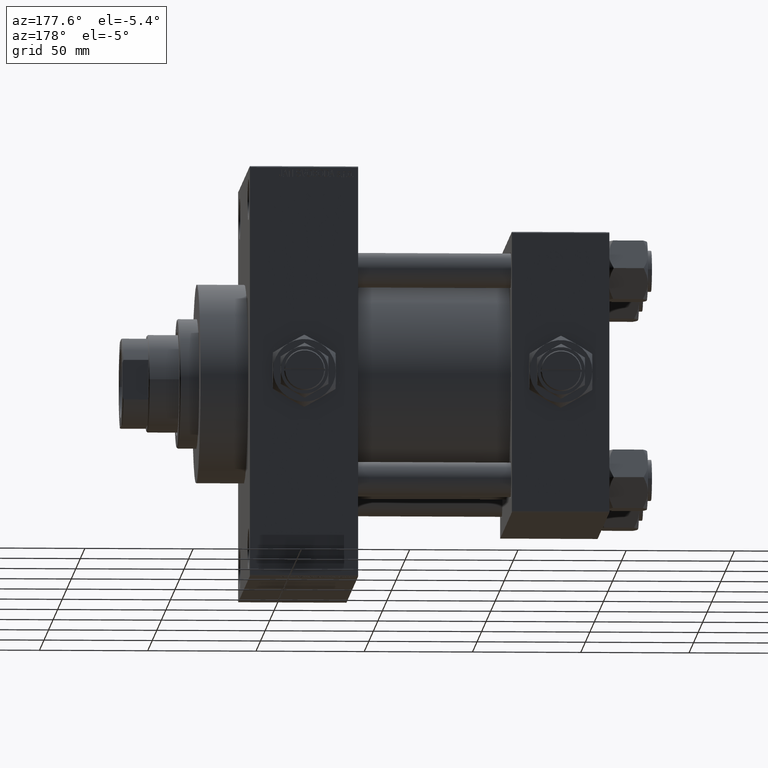
[diagram: clean part render]
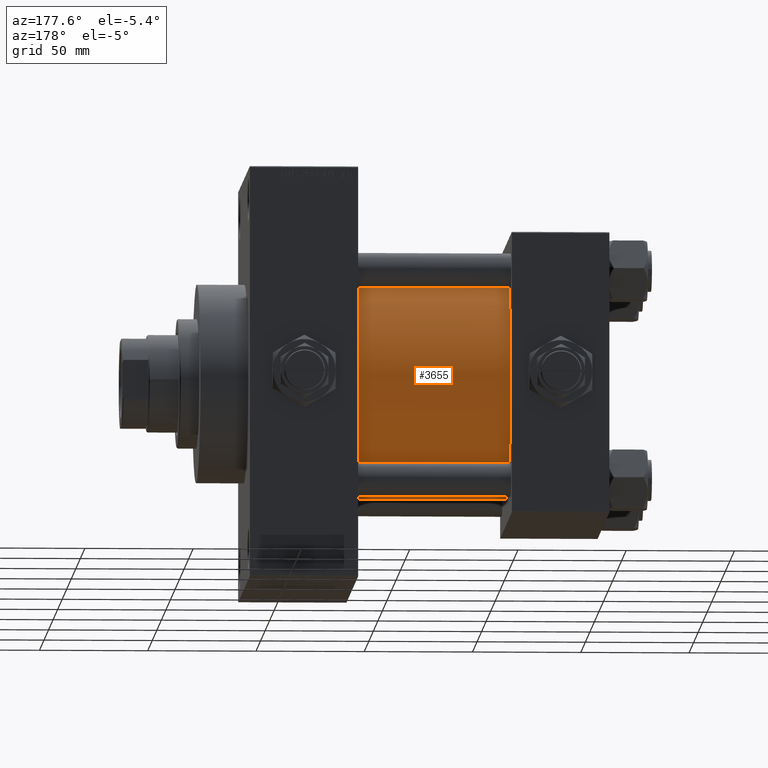
[diagram: same view with one face highlighted and labeled with its STEP entity id]
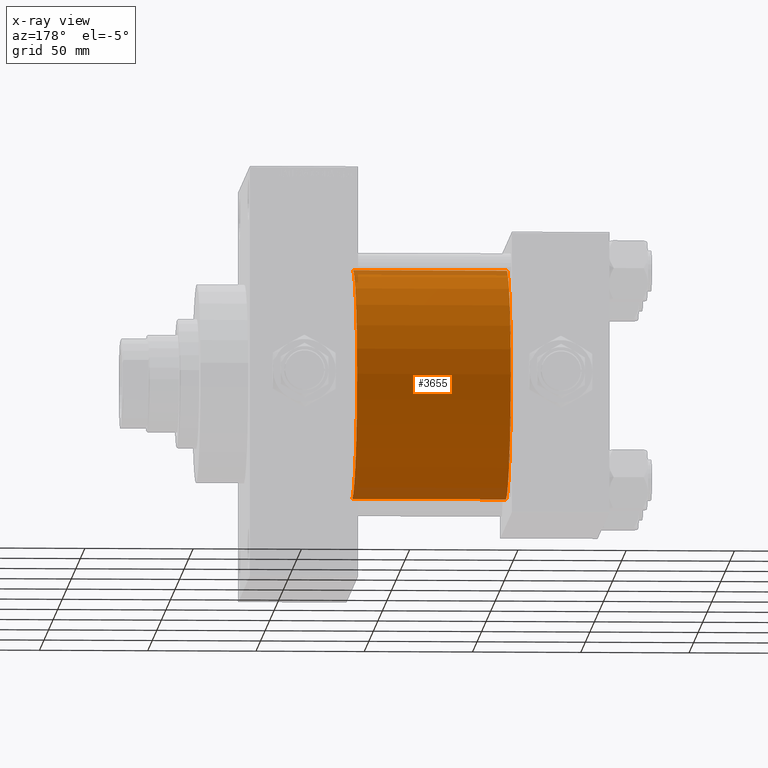
[diagram: x-ray of the same camera — body ghosted, the highlighted face saturated]
A machine part, auxiliary view. The second image highlights one B-rep face of the part: STEP entity #3655.
The next image is the same camera in x-ray: the body ghosted, the highlighted face saturated — about 6% of this face is hidden behind the body in this view.
In plain terms, the highlighted cylindrical surface (partial cylindrical patch) has radius 53 mm, axis along (-1, -0, -0).
Its self-contained STEP definition (entity closure, byte-faithful):
#141 = EDGE_CURVE ( 'NONE', #5402, #29711, #45148, .T. ) ;
#636 = CYLINDRICAL_SURFACE ( 'NONE', #22134, 53.00000000000000711 ) ;
#3655 = ADVANCED_FACE ( 'NONE', ( #7465 ), #636, .T. ) ;
#3885 = LINE ( 'NONE', #15734, #17479 ) ;
#5402 = VERTEX_POINT ( 'NONE', #28965 ) ;
#5521 = CARTESIAN_POINT ( 'NONE',  ( 45.00000000000000000, 3.888542821515762466E-15, -53.00000000000000711 ) ) ;
#7367 = DIRECTION ( 'NONE',  ( -1.000000000000000000, -0.000000000000000000, -0.000000000000000000 ) ) ;
#7420 = EDGE_CURVE ( 'NONE', #5402, #23168, #40633, .T. ) ;
#7465 = FACE_OUTER_BOUND ( 'NONE', #26738, .T. ) ;
#7769 = AXIS2_PLACEMENT_3D ( 'NONE', #38527, #22676, #49839 ) ;
#11080 = ORIENTED_EDGE ( 'NONE', *, *, #7420, .F. ) ;
#11991 = DIRECTION ( 'NONE',  ( -1.000000000000000000, -0.000000000000000000, -0.000000000000000000 ) ) ;
#12855 = CIRCLE ( 'NONE', #18514, 53.00000000000000711 ) ;
#14246 = ORIENTED_EDGE ( 'NONE', *, *, #141, .T. ) ;
#15734 = CARTESIAN_POINT ( 'NONE',  ( 115.9999999999999858, -2.602085213965210642E-15, 53.00000000000000711 ) ) ;
#17479 = VECTOR ( 'NONE', #34393, 1000.000000000000000 ) ;
#17891 = ORIENTED_EDGE ( 'NONE', *, *, #41159, .T. ) ;
#18514 = AXIS2_PLACEMENT_3D ( 'NONE', #34300, #42334, #19429 ) ;
#19429 = DIRECTION ( 'NONE',  ( 0.000000000000000000, 0.000000000000000000, 1.000000000000000000 ) ) ;
#21945 = VERTEX_POINT ( 'NONE', #42609 ) ;
#22134 = AXIS2_PLACEMENT_3D ( 'NONE', #23578, #11991, #49765 ) ;
#22676 = DIRECTION ( 'NONE',  ( 1.000000000000000000, 0.000000000000000000, 0.000000000000000000 ) ) ;
#23168 = VERTEX_POINT ( 'NONE', #48858 ) ;
#23578 = CARTESIAN_POINT ( 'NONE',  ( 115.9999999999999858, -2.602085213965210642E-15, 0.000000000000000000 ) ) ;
#26738 = EDGE_LOOP ( 'NONE', ( #11080, #14246, #17891, #46829 ) ) ;
#28965 = CARTESIAN_POINT ( 'NONE',  ( 115.9999999999999858, 3.888542821515762466E-15, -53.00000000000000711 ) ) ;
#29711 = VERTEX_POINT ( 'NONE', #5521 ) ;
#32400 = VECTOR ( 'NONE', #7367, 1000.000000000000000 ) ;
#32613 = EDGE_CURVE ( 'NONE', #23168, #21945, #3885, .T. ) ;
#34300 = CARTESIAN_POINT ( 'NONE',  ( 45.00000000000000000, -2.602085213965210642E-15, 0.000000000000000000 ) ) ;
#34393 = DIRECTION ( 'NONE',  ( -1.000000000000000000, -0.000000000000000000, -0.000000000000000000 ) ) ;
#38527 = CARTESIAN_POINT ( 'NONE',  ( 115.9999999999999858, -2.602085213965210642E-15, 0.000000000000000000 ) ) ;
#40633 = CIRCLE ( 'NONE', #7769, 53.00000000000000711 ) ;
#41159 = EDGE_CURVE ( 'NONE', #29711, #21945, #12855, .T. ) ;
#41387 = CARTESIAN_POINT ( 'NONE',  ( 115.9999999999999858, 3.888542821515762466E-15, -53.00000000000000711 ) ) ;
#42334 = DIRECTION ( 'NONE',  ( 1.000000000000000000, -0.000000000000000000, 0.000000000000000000 ) ) ;
#42609 = CARTESIAN_POINT ( 'NONE',  ( 45.00000000000000000, -2.602085213965210642E-15, 53.00000000000000711 ) ) ;
#45148 = LINE ( 'NONE', #41387, #32400 ) ;
#46829 = ORIENTED_EDGE ( 'NONE', *, *, #32613, .F. ) ;
#48858 = CARTESIAN_POINT ( 'NONE',  ( 115.9999999999999858, -2.602085213965210642E-15, 53.00000000000000711 ) ) ;
#49765 = DIRECTION ( 'NONE',  ( 0.000000000000000000, 0.000000000000000000, 1.000000000000000000 ) ) ;
#49839 = DIRECTION ( 'NONE',  ( 0.000000000000000000, 0.000000000000000000, -1.000000000000000000 ) ) ;